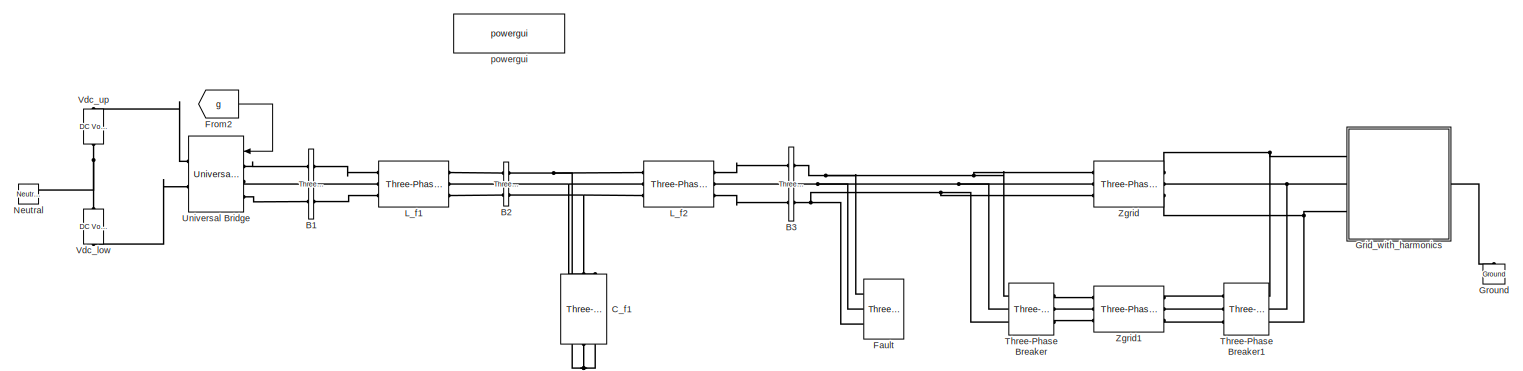
[diagram: root canvas - part 1/2, full width, top band]
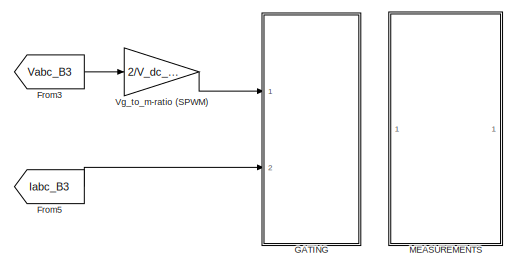
[diagram: root canvas - part 2/2, bottom left region]
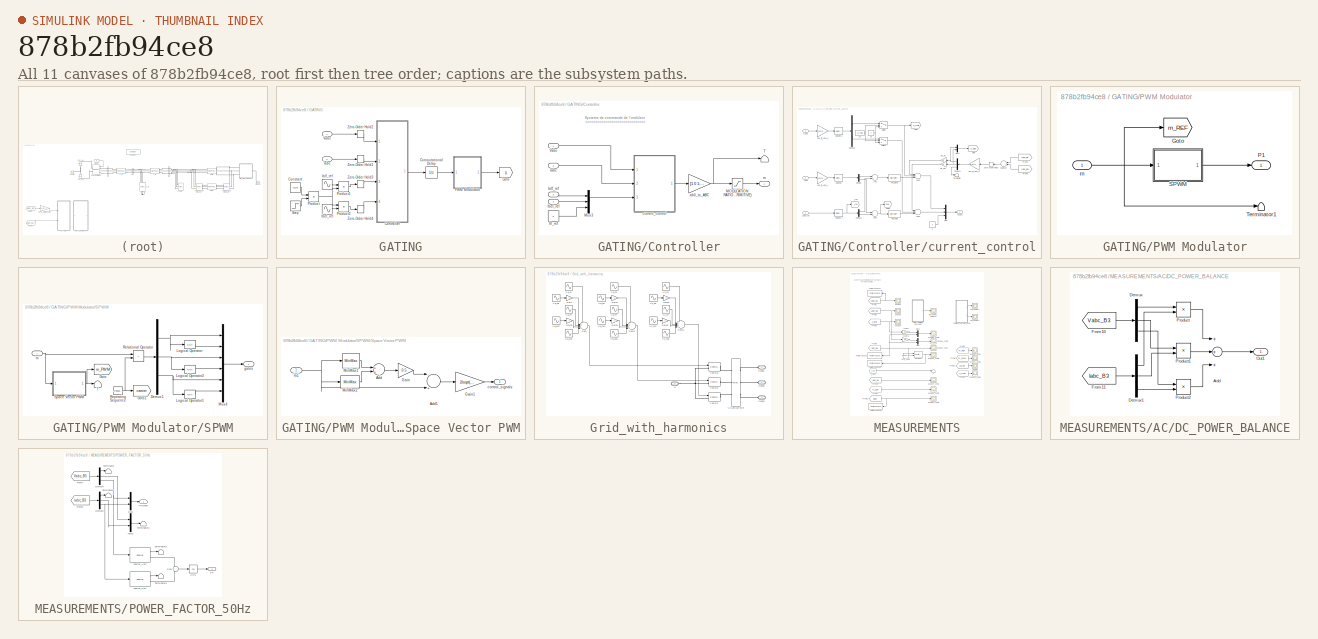
[diagram: thumbnail index - all 11 canvases of the model, root first then tree order]
MODEL slx_878b2fb94ce8
KIND model
CONFIG AbsTol = 0.00001
CONFIG EnableMultiTasking = on
CONFIG FixedStep = auto
CONFIG MaxStep = auto
CONFIG MinStep = auto
CONFIG RelTol = 1e-5
CONFIG SampleTimeConstraint = Unconstrained
CONFIG Solver = ode23tb
CONFIG SolverName = ode23tb
CONFIG StartTime = 0.0
CONFIG StopTime = 0.16
BLOCK [Reference] B1  REF=powerlib/Measurements/Three-Phase
V-I Measurement
  Ports = [0, 0, 0, 0, 0, 3, 3]
  SourceBlock = powerlib/Measurements/Three-Phase\nV-I Measurement
  SourceProductBaseCode = PS
  SourceProductName = Simscape Electrical
  SourceType = Three-Phase VI Measurement
BLOCK [Reference] B2  REF=powerlib/Measurements/Three-Phase
V-I Measurement
  Ports = [0, 0, 0, 0, 0, 3, 3]
  SourceBlock = powerlib/Measurements/Three-Phase\nV-I Measurement
  SourceProductBaseCode = PS
  SourceProductName = Simscape Electrical
  SourceType = Three-Phase VI Measurement
BLOCK [Reference] B3  REF=powerlib/Measurements/Three-Phase
V-I Measurement
  Ports = [0, 0, 0, 0, 0, 3, 3]
  SourceBlock = powerlib/Measurements/Three-Phase\nV-I Measurement
  SourceProductBaseCode = PS
  SourceProductName = Simscape Electrical
  SourceType = Three-Phase VI Measurement
BLOCK [Reference] C_f1  REF=powerlib/Elements/Three-Phase
Series RLC Branch
  AttributesFormatString = \n
  Ports = [0, 0, 0, 0, 0, 3, 3]
  SourceBlock = powerlib/Elements/Three-Phase\nSeries RLC Branch
  SourceProductBaseCode = PS
  SourceProductName = Simscape Electrical
  SourceType = Three-Phase Series RLC Branch
BLOCK [Reference] Fault  REF=powerlib/Elements/Three-Phase Fault
  Ports = [0, 0, 0, 0, 0, 3]
  SourceBlock = powerlib/Elements/Three-Phase Fault
  SourceProductBaseCode = PS
  SourceProductName = Simscape Electrical
  SourceType = Three-Phase Fault
BLOCK [From] From2
  CloseFcn = tagdialog Close
  GotoTag = g
  TagVisibility = global
BLOCK [From] From3
  CloseFcn = tagdialog Close
  GotoTag = Vabc_B3
  TagVisibility = global
BLOCK [From] From5
  CloseFcn = tagdialog Close
  GotoTag = Iabc_B3
  TagVisibility = global
BLOCK [SubSystem] GATING
  Ports = [2]
  RequestExecContextInheritance = off
BLOCK [UnitDelay] GATING/Computational Delay
  HasFrameUpgradeWarning = on
  SampleTime = Ts_control
BLOCK [Constant] GATING/Constant
  Value = Id_ref
BLOCK [SubSystem] GATING/Controller
  Ports = [4, 1]
  RequestExecContextInheritance = off
BLOCK [Constant] GATING/Controller/I0_ref
  SampleTime = Ts_control
  Value = 0
BLOCK [Inport] GATING/Controller/Iabc
  IconDisplay = Port number
  Port = 2
  PortDimensions = 3
BLOCK [Inport] GATING/Controller/Ialf_ref
  IconDisplay = Port number
  Port = 3
  PortDimensions = 1
BLOCK [Inport] GATING/Controller/Ibet_ref
  IconDisplay = Port number
  Port = 4
  PortDimensions = 1
BLOCK [Saturate] GATING/Controller/MODULATION RATIO_LIMITER (PRIMITIVE)
  InputPortMap = u0
  LowerLimit = -1
  Ports = [1, 1]
  UpperLimit = 1
BLOCK [Mux] GATING/Controller/Mux3
  DisplayOption = bar
  Inputs = 3
  Ports = [3, 1]
BLOCK [Terminator] GATING/Controller/T
BLOCK [Inport] GATING/Controller/Vabc
  IconDisplay = Port number
  PortDimensions = 3
BLOCK [Gain] GATING/Controller/ab0_to_ABC
  Gain = [1 0 1; -0.5 sqrt(3)/2 1; -0.5 -sqrt(3)/2 1]
  Multiplication = Matrix(K*u)
  OutDataTypeStr = Inherit: Inherit via internal rule
  ParamDataTypeStr = Inherit: Inherit via internal rule
  SaturateOnIntegerOverflow = off
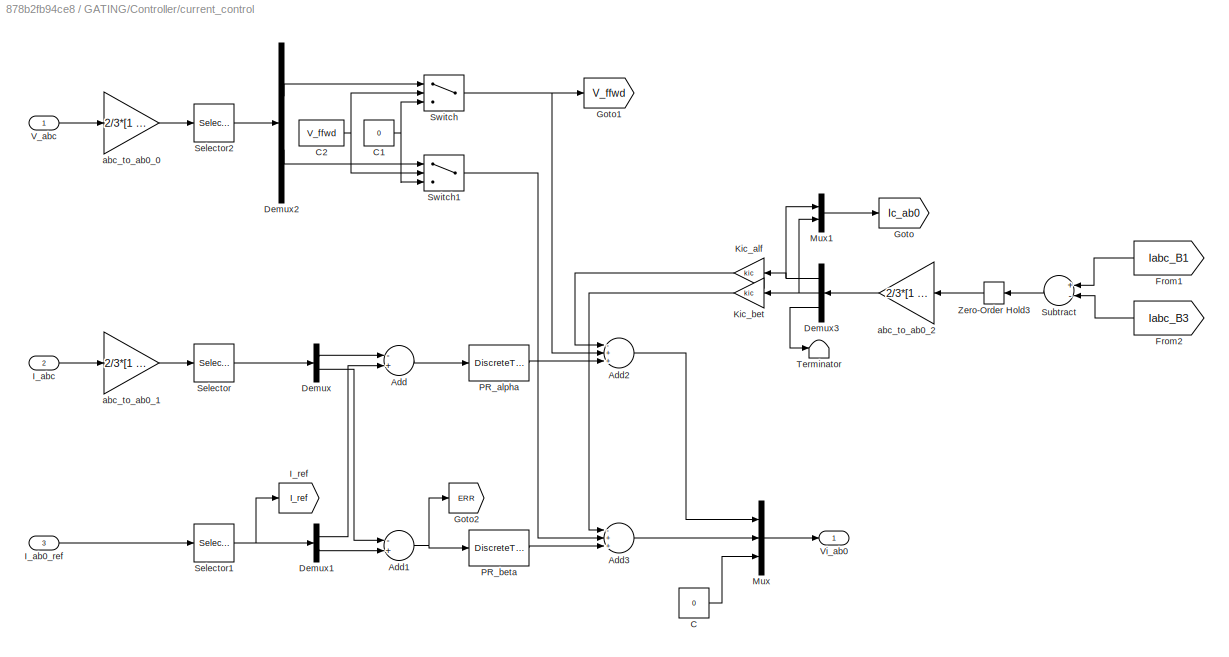
BLOCK [SubSystem] GATING/Controller/current_control
  Ports = [3, 1]
  RequestExecContextInheritance = off
BLOCK [Sum] GATING/Controller/current_control/Add
  InputSameDT = off
  Inputs = -+
  OutDataTypeStr = Inherit: Inherit via internal rule
  Ports = [2, 1]
  SaturateOnIntegerOverflow = off
BLOCK [Sum] GATING/Controller/current_control/Add1
  InputSameDT = off
  Inputs = -+
  OutDataTypeStr = Inherit: Inherit via internal rule
  Ports = [2, 1]
  SaturateOnIntegerOverflow = off
BLOCK [Sum] GATING/Controller/current_control/Add2
  InputSameDT = off
  Inputs = -++
  OutDataTypeStr = Inherit: Inherit via internal rule
  Ports = [3, 1]
  SaturateOnIntegerOverflow = off
BLOCK [Sum] GATING/Controller/current_control/Add3
  InputSameDT = off
  Inputs = -++
  OutDataTypeStr = Inherit: Inherit via internal rule
  Ports = [3, 1]
  SaturateOnIntegerOverflow = off
BLOCK [Constant] GATING/Controller/current_control/C
  SampleTime = Ts_control
  Value = 0
BLOCK [Constant] GATING/Controller/current_control/C1
  SampleTime = Ts_control
  Value = 0
BLOCK [Constant] GATING/Controller/current_control/C2
  SampleTime = Ts_control
  Value = V_ffwd
BLOCK [Demux] GATING/Controller/current_control/Demux
  DisplayOption = bar
  Outputs = 2
  Ports = [1, 2]
BLOCK [Demux] GATING/Controller/current_control/Demux1
  DisplayOption = bar
  Outputs = 2
  Ports = [1, 2]
BLOCK [Demux] GATING/Controller/current_control/Demux2
  DisplayOption = bar
  Outputs = 2
  Ports = [1, 2]
BLOCK [Demux] GATING/Controller/current_control/Demux3
  DisplayOption = bar
  Outputs = 3
  Ports = [1, 3]
BLOCK [From] GATING/Controller/current_control/From1
  CloseFcn = tagdialog Close
  GotoTag = Iabc_B1
  TagVisibility = global
BLOCK [From] GATING/Controller/current_control/From2
  CloseFcn = tagdialog Close
  GotoTag = Iabc_B3
  TagVisibility = global
BLOCK [Goto] GATING/Controller/current_control/Goto
  GotoTag = Ic_ab0
  TagVisibility = global
BLOCK [Goto] GATING/Controller/current_control/Goto1
  GotoTag = V_ffwd
  TagVisibility = global
BLOCK [Goto] GATING/Controller/current_control/Goto2
  GotoTag = ERR
  TagVisibility = global
BLOCK [Inport] GATING/Controller/current_control/I_ab0_ref
  IconDisplay = Port number
  Port = 3
BLOCK [Inport] GATING/Controller/current_control/I_abc
  IconDisplay = Port number
  Port = 2
BLOCK [Goto] GATING/Controller/current_control/I_ref
  GotoTag = I_ref
  TagVisibility = global
BLOCK [Gain] GATING/Controller/current_control/Kic_alf
  Gain = kic
  OutDataTypeStr = Inherit: Inherit via internal rule
  ParamDataTypeStr = Inherit: Inherit via internal rule
  SaturateOnIntegerOverflow = off
BLOCK [Gain] GATING/Controller/current_control/Kic_bet
  Gain = kic
  OutDataTypeStr = Inherit: Inherit via internal rule
  ParamDataTypeStr = Inherit: Inherit via internal rule
  SaturateOnIntegerOverflow = off
BLOCK [Mux] GATING/Controller/current_control/Mux
  DisplayOption = bar
  Inputs = 3
  Ports = [3, 1]
BLOCK [Mux] GATING/Controller/current_control/Mux1
  DisplayOption = bar
  Inputs = 2
  Ports = [2, 1]
BLOCK [DiscreteTransferFcn] GATING/Controller/current_control/PR_alpha
  Denominator = DEN_cc
  InputPortMap = u0
  Numerator = NUM_cc
  Ports = [1, 1]
  SampleTime = Ts_control
BLOCK [DiscreteTransferFcn] GATING/Controller/current_control/PR_beta
  Denominator = DEN_cc
  InputPortMap = u0
  Numerator = NUM_cc
  Ports = [1, 1]
  SampleTime = Ts_control
BLOCK [Selector] GATING/Controller/current_control/Selector
  IndexOptions = Index vector (dialog)
  Indices = [1 2]
  InputPortWidth = 3
  OutputSizes = 1
  Ports = [1, 1]
BLOCK [Selector] GATING/Controller/current_control/Selector1
  IndexOptions = Index vector (dialog)
  Indices = [1 2]
  InputPortWidth = 3
  OutputSizes = 1
  Ports = [1, 1]
BLOCK [Selector] GATING/Controller/current_control/Selector2
  IndexOptions = Index vector (dialog)
  Indices = [1 2]
  InputPortWidth = 3
  OutputSizes = 1
  Ports = [1, 1]
BLOCK [Sum] GATING/Controller/current_control/Subtract
  InputSameDT = off
  Inputs = +-
  OutDataTypeStr = Inherit: Inherit via internal rule
  Ports = [2, 1]
  SaturateOnIntegerOverflow = off
BLOCK [Switch] GATING/Controller/current_control/Switch
  InputSameDT = off
  SaturateOnIntegerOverflow = off
BLOCK [Switch] GATING/Controller/current_control/Switch1
  InputSameDT = off
  SaturateOnIntegerOverflow = off
BLOCK [Terminator] GATING/Controller/current_control/Terminator
BLOCK [Inport] GATING/Controller/current_control/V_abc
  IconDisplay = Port number
BLOCK [Outport] GATING/Controller/current_control/Vi_ab0
  IconDisplay = Port number
BLOCK [ZeroOrderHold] GATING/Controller/current_control/Zero-Order Hold3
  SampleTime = Ts_control
BLOCK [Gain] GATING/Controller/current_control/abc_to_ab0_0
  Gain = 2/3*[1 -0.5 -0.5; 0 sqrt(3)/2 -sqrt(3)/2; 0.5 0.5 0.5]
  Multiplication = Matrix(K*u)
  OutDataTypeStr = Inherit: Inherit via internal rule
  ParamDataTypeStr = Inherit: Inherit via internal rule
  SaturateOnIntegerOverflow = off
BLOCK [Gain] GATING/Controller/current_control/abc_to_ab0_1
  Gain = 2/3*[1 -0.5 -0.5; 0 sqrt(3)/2 -sqrt(3)/2; 0.5 0.5 0.5]
  Multiplication = Matrix(K*u)
  OutDataTypeStr = Inherit: Inherit via internal rule
  ParamDataTypeStr = Inherit: Inherit via internal rule
  SaturateOnIntegerOverflow = off
BLOCK [Gain] GATING/Controller/current_control/abc_to_ab0_2
  Gain = 2/3*[1 -0.5 -0.5; 0 sqrt(3)/2 -sqrt(3)/2; 0.5 0.5 0.5]
  Multiplication = Matrix(K*u)
  OutDataTypeStr = Inherit: Inherit via internal rule
  ParamDataTypeStr = Inherit: Inherit via internal rule
  SaturateOnIntegerOverflow = off
BLOCK [Outport] GATING/Controller/m
  IconDisplay = Port number
BLOCK [Goto] GATING/Goto
  GotoTag = g
  TagVisibility = global
BLOCK [Inport] GATING/Iabc
  IconDisplay = Port number
  Port = 2
  PortDimensions = 3
BLOCK [Sin] GATING/Ialf_ref
  Frequency = 2*pi*f_n
  Ports = [0, 1]
  SampleTime = 0
BLOCK [Sin] GATING/Ibet_ref
  Frequency = 2*pi*f_n
  Phase = -pi/2
  Ports = [0, 1]
  SampleTime = 0
BLOCK [SubSystem] GATING/PWM Modulator
  Ports = [1, 1]
  RequestExecContextInheritance = off
BLOCK [Goto] GATING/PWM Modulator/Goto
  GotoTag = m_REF
  TagVisibility = global
BLOCK [Outport] GATING/PWM Modulator/P1
  IconDisplay = Port number
BLOCK [SubSystem] GATING/PWM Modulator/SPWM
  Ports = [1, 1]
  RequestExecContextInheritance = off
BLOCK [Demux] GATING/PWM Modulator/SPWM/Demux1
  DisplayOption = bar
  Outputs = 3
  Ports = [1, 3]
BLOCK [Goto] GATING/PWM Modulator/SPWM/Goto
  GotoTag = m_PWM
  TagVisibility = global
BLOCK [Goto] GATING/PWM Modulator/SPWM/Goto1
  GotoTag = carrier
  TagVisibility = global
BLOCK [Logic] GATING/PWM Modulator/SPWM/Logical Operator
  AllPortsSameDT = off
  Operator = NOT
  OutDataTypeStr = boolean
  Ports = [1, 1]
BLOCK [Logic] GATING/PWM Modulator/SPWM/Logical Operator1
  AllPortsSameDT = off
  Operator = NOT
  OutDataTypeStr = boolean
  Ports = [1, 1]
BLOCK [Logic] GATING/PWM Modulator/SPWM/Logical Operator2
  AllPortsSameDT = off
  Operator = NOT
  OutDataTypeStr = boolean
  Ports = [1, 1]
BLOCK [Mux] GATING/PWM Modulator/SPWM/Mux4
  DisplayOption = bar
  Inputs = 6
  Ports = [6, 1]
BLOCK [RelationalOperator] GATING/PWM Modulator/SPWM/Relational Operator
  InputSameDT = off
  Operator = >
  Ports = [2, 1]
BLOCK [Reference] GATING/PWM Modulator/SPWM/Repeating Sequence  REF=simulink/Sources/Repeating
Sequence
  Ports = [0, 1]
  SourceBlock = simulink/Sources/Repeating\nSequence
  SourceProductBaseCode = SL
  SourceProductName = Simulink
  SourceType = Repeating table
BLOCK [SubSystem] GATING/PWM Modulator/SPWM/Space Vector PWM
  Ports = [1, 1]
  RequestExecContextInheritance = off
BLOCK [Sum] GATING/PWM Modulator/SPWM/Space Vector PWM/Add
  InputSameDT = off
  OutDataTypeStr = Inherit: Inherit via internal rule
  Ports = [2, 1]
  SaturateOnIntegerOverflow = off
BLOCK [Sum] GATING/PWM Modulator/SPWM/Space Vector PWM/Add1
  InputSameDT = off
  Inputs = -+
  OutDataTypeStr = Inherit: Inherit via internal rule
  Ports = [2, 1]
  SaturateOnIntegerOverflow = off
BLOCK [Gain] GATING/PWM Modulator/SPWM/Space Vector PWM/Gain
  Gain = 0.5
  OutDataTypeStr = Inherit: Inherit via internal rule
  ParamDataTypeStr = Inherit: Inherit via internal rule
  SaturateOnIntegerOverflow = off
BLOCK [Gain] GATING/PWM Modulator/SPWM/Space Vector PWM/Gain1
  Gain = 2/sqrt(3)
  OutDataTypeStr = Inherit: Inherit via internal rule
  ParamDataTypeStr = Inherit: Inherit via internal rule
  SaturateOnIntegerOverflow = off
BLOCK [Inport] GATING/PWM Modulator/SPWM/Space Vector PWM/In1
  IconDisplay = Port number
BLOCK [MinMax] GATING/PWM Modulator/SPWM/Space Vector PWM/MinMax1
  Ports = [1, 1]
BLOCK [MinMax] GATING/PWM Modulator/SPWM/Space Vector PWM/MinMax2
  Function = max
  Ports = [1, 1]
BLOCK [Outport] GATING/PWM Modulator/SPWM/Space Vector PWM/control_signals
  IconDisplay = Port number
BLOCK [Terminator] GATING/PWM Modulator/SPWM/T
BLOCK [Outport] GATING/PWM Modulator/SPWM/gates
  IconDisplay = Port number
BLOCK [Inport] GATING/PWM Modulator/SPWM/m
  IconDisplay = Port number
BLOCK [Terminator] GATING/PWM Modulator/Terminator1
BLOCK [Inport] GATING/PWM Modulator/m
  IconDisplay = Port number
BLOCK [Product] GATING/Product
  InputSameDT = off
  OutDataTypeStr = Inherit: Inherit via internal rule
  Ports = [2, 1]
  RndMeth = Floor
  SaturateOnIntegerOverflow = off
BLOCK [Product] GATING/Product1
  InputSameDT = off
  OutDataTypeStr = Inherit: Inherit via internal rule
  Ports = [2, 1]
  RndMeth = Floor
  SaturateOnIntegerOverflow = off
BLOCK [Product] GATING/Product2
  InputSameDT = off
  OutDataTypeStr = Inherit: Inherit via internal rule
  Ports = [2, 1]
  RndMeth = Floor
  SaturateOnIntegerOverflow = off
BLOCK [Step] GATING/Step
  SampleTime = 0
  Time = 0.04
BLOCK [Inport] GATING/Vabc
  IconDisplay = Port number
  PortDimensions = 3
BLOCK [ZeroOrderHold] GATING/Zero-Order Hold1
  SampleTime = Ts_control
BLOCK [ZeroOrderHold] GATING/Zero-Order Hold2
  SampleTime = Ts_control
BLOCK [ZeroOrderHold] GATING/Zero-Order Hold3
  SampleTime = Ts_control
BLOCK [ZeroOrderHold] GATING/Zero-Order Hold4
  SampleTime = Ts_control
BLOCK [SubSystem] Grid_with_harmonics
  Ports = [0, 0, 0, 0, 0, 3, 1]
  RequestExecContextInheritance = off
BLOCK [PMIOPort] Grid_with_harmonics/Conn1
  Side = Left
BLOCK [PMIOPort] Grid_with_harmonics/Conn2
  Port = 2
  Side = Left
BLOCK [PMIOPort] Grid_with_harmonics/Conn3
  Port = 3
  Side = Left
BLOCK [Gain] Grid_with_harmonics/Gain
  Gain = -1
  OutDataTypeStr = Inherit: Inherit via internal rule
  ParamDataTypeStr = Inherit: Inherit via internal rule
  SaturateOnIntegerOverflow = off
BLOCK [Gain] Grid_with_harmonics/Gain1
  Gain = -1
  OutDataTypeStr = Inherit: Inherit via internal rule
  ParamDataTypeStr = Inherit: Inherit via internal rule
  SaturateOnIntegerOverflow = off
BLOCK [Gain] Grid_with_harmonics/Gain2
  Gain = -1
  OutDataTypeStr = Inherit: Inherit via internal rule
  ParamDataTypeStr = Inherit: Inherit via internal rule
  SaturateOnIntegerOverflow = off
BLOCK [Gain] Grid_with_harmonics/Gain3
  Gain = -1
  OutDataTypeStr = Inherit: Inherit via internal rule
  ParamDataTypeStr = Inherit: Inherit via internal rule
  SaturateOnIntegerOverflow = off
BLOCK [Gain] Grid_with_harmonics/Gain4
  Gain = -1
  OutDataTypeStr = Inherit: Inherit via internal rule
  ParamDataTypeStr = Inherit: Inherit via internal rule
  SaturateOnIntegerOverflow = off
BLOCK [Gain] Grid_with_harmonics/Gain5
  Gain = -1
  OutDataTypeStr = Inherit: Inherit via internal rule
  ParamDataTypeStr = Inherit: Inherit via internal rule
  SaturateOnIntegerOverflow = off
BLOCK [PMIOPort] Grid_with_harmonics/N
  Port = 4
  Side = Right
BLOCK [Sum] Grid_with_harmonics/Sum
  IconShape = round
  InputSameDT = off
  Inputs = +++++|
  OutDataTypeStr = Inherit: Inherit via internal rule
  Ports = [5, 1]
  SaturateOnIntegerOverflow = off
BLOCK [Sum] Grid_with_harmonics/Sum2
  IconShape = round
  InputSameDT = off
  Inputs = +++++|
  OutDataTypeStr = Inherit: Inherit via internal rule
  Ports = [5, 1]
  SaturateOnIntegerOverflow = off
BLOCK [Sum] Grid_with_harmonics/Sum3
  IconShape = round
  InputSameDT = off
  Inputs = +++++|
  OutDataTypeStr = Inherit: Inherit via internal rule
  Ports = [5, 1]
  SaturateOnIntegerOverflow = off
BLOCK [Reference] Grid_with_harmonics/VOLTEMETER  REF=powerlib/Measurements/Three-Phase
V-I Measurement
  Ports = [0, 0, 0, 0, 0, 3, 3]
  SourceBlock = powerlib/Measurements/Three-Phase\nV-I Measurement
  SourceProductBaseCode = PS
  SourceProductName = Simscape Electrical
  SourceType = Three-Phase VI Measurement
BLOCK [Sin] Grid_with_harmonics/Va_h1
  Amplitude = Vgrid
  Frequency = 2*pi*f_n
  Ports = [0, 1]
  SampleTime = 0
BLOCK [Sin] Grid_with_harmonics/Va_h12
  Amplitude = Vg_h12
  Frequency = 12*2*pi*f_n
  Ports = [0, 1]
  SampleTime = 0
BLOCK [Sin] Grid_with_harmonics/Va_h15
  Amplitude = Vg_h15
  Frequency = 15*2*pi*f_n
  Ports = [0, 1]
  SampleTime = 0
BLOCK [Sin] Grid_with_harmonics/Va_h5
  Amplitude = Vg_h5
  Frequency = 5*2*pi*f_n
  Ports = [0, 1]
  SampleTime = 0
BLOCK [Sin] Grid_with_harmonics/Va_h7
  Amplitude = Vg_h7
  Frequency = 7*2*pi*f_n
  Ports = [0, 1]
  SampleTime = 0
BLOCK [Sin] Grid_with_harmonics/Vb_h1
  Amplitude = Vgrid
  Frequency = 2*pi*f_n
  Phase = -2*pi/3
  Ports = [0, 1]
  SampleTime = 0
BLOCK [Sin] Grid_with_harmonics/Vb_h12
  Amplitude = Vg_h12
  Frequency = 12*2*pi*f_n
  Phase = 2*pi/3
  Ports = [0, 1]
  SampleTime = 0
BLOCK [Sin] Grid_with_harmonics/Vb_h15
  Amplitude = Vg_h15
  Frequency = 15*2*pi*f_n
  Phase = -2*pi/3
  Ports = [0, 1]
  SampleTime = 0
BLOCK [Sin] Grid_with_harmonics/Vb_h5
  Amplitude = Vg_h5
  Frequency = 5*2*pi*f_n
  Phase = 2*pi/3
  Ports = [0, 1]
  SampleTime = 0
BLOCK [Sin] Grid_with_harmonics/Vb_h7
  Amplitude = Vg_h7
  Frequency = 7*2*pi*f_n
  Phase = -2*pi/3
  Ports = [0, 1]
  SampleTime = 0
BLOCK [Sin] Grid_with_harmonics/Vc_h1
  Amplitude = Vgrid
  Frequency = 2*pi*f_n
  Phase = 2*pi/3
  Ports = [0, 1]
  SampleTime = 0
BLOCK [Sin] Grid_with_harmonics/Vc_h12
  Amplitude = Vg_h12
  Frequency = 12*2*pi*f_n
  Phase = -2*pi/3
  Ports = [0, 1]
  SampleTime = 0
BLOCK [Sin] Grid_with_harmonics/Vc_h15
  Amplitude = Vg_h15
  Frequency = 15*2*pi*f_n
  Phase = 2*pi/3
  Ports = [0, 1]
  SampleTime = 0
BLOCK [Sin] Grid_with_harmonics/Vc_h5
  Amplitude = Vg_h5
  Frequency = 5*2*pi*f_n
  Phase = -2*pi/3
  Ports = [0, 1]
  SampleTime = 0
BLOCK [Sin] Grid_with_harmonics/Vc_h7
  Amplitude = Vg_h7
  Frequency = 7*2*pi*f_n
  Phase = 2*pi/3
  Ports = [0, 1]
  SampleTime = 0
BLOCK [Reference] Grid_with_harmonics/Vgrid,a  REF=powerlib/Electrical
Sources/Controlled Voltage Source
  Ports = [1, 0, 0, 0, 0, 1, 1]
  SourceBlock = powerlib/Electrical\nSources/Controlled Voltage Source
  SourceProductBaseCode = PS
  SourceProductName = Simscape Electrical
  SourceType = Controlled Voltage Source
BLOCK [Reference] Grid_with_harmonics/Vgrid,b  REF=powerlib/Electrical
Sources/Controlled Voltage Source
  Ports = [1, 0, 0, 0, 0, 1, 1]
  SourceBlock = powerlib/Electrical\nSources/Controlled Voltage Source
  SourceProductBaseCode = PS
  SourceProductName = Simscape Electrical
  SourceType = Controlled Voltage Source
BLOCK [Reference] Grid_with_harmonics/Vgrid,c  REF=powerlib/Electrical
Sources/Controlled Voltage Source
  Ports = [1, 0, 0, 0, 0, 1, 1]
  SourceBlock = powerlib/Electrical\nSources/Controlled Voltage Source
  SourceProductBaseCode = PS
  SourceProductName = Simscape Electrical
  SourceType = Controlled Voltage Source
BLOCK [Reference] Ground  REF=powerlib/Elements/Ground
  Ports = [0, 0, 0, 0, 0, 1]
  SourceBlock = powerlib/Elements/Ground
  SourceProductBaseCode = PS
  SourceProductName = Simscape Electrical
  SourceType = Ground
BLOCK [Reference] L_f1  REF=powerlib/Elements/Three-Phase
Series RLC Branch
  AttributesFormatString = \n
  Ports = [0, 0, 0, 0, 0, 3, 3]
  SourceBlock = powerlib/Elements/Three-Phase\nSeries RLC Branch
  SourceProductBaseCode = PS
  SourceProductName = Simscape Electrical
  SourceType = Three-Phase Series RLC Branch
BLOCK [Reference] L_f2  REF=powerlib/Elements/Three-Phase
Series RLC Branch
  AttributesFormatString = \n
  Ports = [0, 0, 0, 0, 0, 3, 3]
  SourceBlock = powerlib/Elements/Three-Phase\nSeries RLC Branch
  SourceProductBaseCode = PS
  SourceProductName = Simscape Electrical
  SourceType = Three-Phase Series RLC Branch
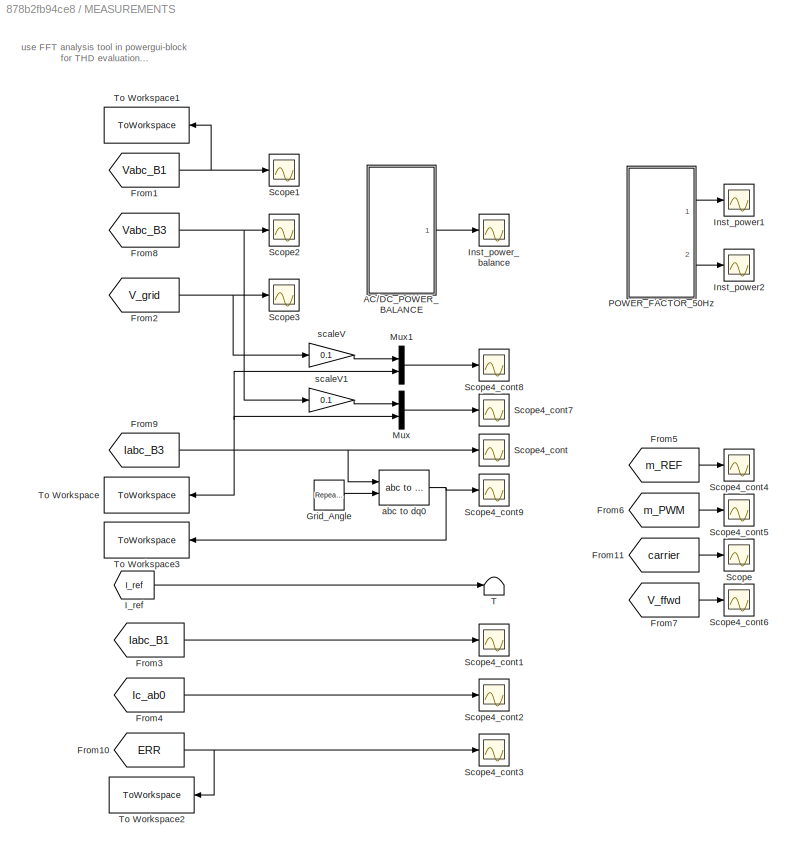
BLOCK [SubSystem] MEASUREMENTS
  Ports = []
  RequestExecContextInheritance = off
BLOCK [SubSystem] MEASUREMENTS/AC//DC_POWER_BALANCE
  Commented = on
  Ports = [0, 1]
  RequestExecContextInheritance = off
BLOCK [Sum] MEASUREMENTS/AC//DC_POWER_BALANCE/Add
  InputSameDT = off
  Inputs = +++
  OutDataTypeStr = Inherit: Inherit via internal rule
  Ports = [3, 1]
  SaturateOnIntegerOverflow = off
BLOCK [Demux] MEASUREMENTS/AC//DC_POWER_BALANCE/Demux
  DisplayOption = bar
  Outputs = 3
  Ports = [1, 3]
BLOCK [Demux] MEASUREMENTS/AC//DC_POWER_BALANCE/Demux1
  DisplayOption = bar
  Outputs = 3
  Ports = [1, 3]
BLOCK [From] MEASUREMENTS/AC//DC_POWER_BALANCE/From10
  CloseFcn = tagdialog Close
  GotoTag = Vabc_B3
  TagVisibility = global
BLOCK [From] MEASUREMENTS/AC//DC_POWER_BALANCE/From11
  CloseFcn = tagdialog Close
  GotoTag = Iabc_B3
  TagVisibility = global
BLOCK [Outport] MEASUREMENTS/AC//DC_POWER_BALANCE/Out1
  IconDisplay = Port number
BLOCK [Product] MEASUREMENTS/AC//DC_POWER_BALANCE/Product
  InputSameDT = off
  OutDataTypeStr = Inherit: Inherit via internal rule
  Ports = [2, 1]
  RndMeth = Floor
  SaturateOnIntegerOverflow = off
BLOCK [Product] MEASUREMENTS/AC//DC_POWER_BALANCE/Product1
  InputSameDT = off
  OutDataTypeStr = Inherit: Inherit via internal rule
  Ports = [2, 1]
  RndMeth = Floor
  SaturateOnIntegerOverflow = off
BLOCK [Product] MEASUREMENTS/AC//DC_POWER_BALANCE/Product2
  InputSameDT = off
  OutDataTypeStr = Inherit: Inherit via internal rule
  Ports = [2, 1]
  RndMeth = Floor
  SaturateOnIntegerOverflow = off
BLOCK [From] MEASUREMENTS/From1
  CloseFcn = tagdialog Close
  Commented = on
  GotoTag = Vabc_B1
  TagVisibility = global
BLOCK [From] MEASUREMENTS/From10
  CloseFcn = tagdialog Close
  Commented = on
  GotoTag = ERR
  TagVisibility = global
BLOCK [From] MEASUREMENTS/From11
  CloseFcn = tagdialog Close
  Commented = on
  GotoTag = carrier
  TagVisibility = global
BLOCK [From] MEASUREMENTS/From2
  CloseFcn = tagdialog Close
  GotoTag = V_grid
  TagVisibility = global
BLOCK [From] MEASUREMENTS/From3
  CloseFcn = tagdialog Close
  Commented = on
  GotoTag = Iabc_B1
  TagVisibility = global
BLOCK [From] MEASUREMENTS/From4
  CloseFcn = tagdialog Close
  Commented = on
  GotoTag = Ic_ab0
  TagVisibility = global
BLOCK [From] MEASUREMENTS/From5
  CloseFcn = tagdialog Close
  GotoTag = m_REF
  TagVisibility = global
BLOCK [From] MEASUREMENTS/From6
  CloseFcn = tagdialog Close
  GotoTag = m_PWM
  TagVisibility = global
BLOCK [From] MEASUREMENTS/From7
  CloseFcn = tagdialog Close
  GotoTag = V_ffwd
  TagVisibility = global
BLOCK [From] MEASUREMENTS/From8
  CloseFcn = tagdialog Close
  GotoTag = Vabc_B3
  TagVisibility = global
BLOCK [From] MEASUREMENTS/From9
  CloseFcn = tagdialog Close
  GotoTag = Iabc_B3
  TagVisibility = global
BLOCK [Reference] MEASUREMENTS/Grid_Angle  REF=simulink/Sources/Repeating
Sequence
  Ports = [0, 1]
  SourceBlock = simulink/Sources/Repeating\nSequence
  SourceProductBaseCode = SL
  SourceProductName = Simulink
  SourceType = Repeating table
BLOCK [From] MEASUREMENTS/I_ref
  Commented = on
  GotoTag = I_ref
  TagVisibility = global
BLOCK [Scope] MEASUREMENTS/Inst_power1
  Commented = on
  Floating = off
  NumInputPorts = 1
  Ports = [1]
  ScopeSpecificationString = C++SS(StrPVP('Location','[5, 48, 1367, 727]'),StrPVP('Open','off'),StrPVP('ZoomMode','xonly'),MxPVP('AxesTitles',53,'struct(''axes1'',''%<SignalLabel>'')'),MxPVP('ScopeGraphics',56,'struct(''FigureColor'',''[0.501960784313725 0.501960784313725 0.501960784313725]'',''AxesColor'',''[0 0 0]'',''AxesTickColor'',''[1 1 1]'',''LineColors'',''[1 1 0;1 0 1;0 1 1;1 0 0;0 1 0;0 0 1]'',''LineStyles'',''-|-|-...<+419ch>
BLOCK [Scope] MEASUREMENTS/Inst_power2
  Commented = on
  Floating = off
  NumInputPorts = 1
  Ports = [1]
  ScopeSpecificationString = C++SS(StrPVP('Location','[5, 48, 1367, 727]'),StrPVP('Open','off'),StrPVP('ZoomMode','yonly'),MxPVP('AxesTitles',53,'struct(''axes1'',''%<SignalLabel>'')'),MxPVP('ScopeGraphics',56,'struct(''FigureColor'',''[0.501960784313725 0.501960784313725 0.501960784313725]'',''AxesColor'',''[0 0 0]'',''AxesTickColor'',''[1 1 1]'',''LineColors'',''[1 1 0;1 0 1;0 1 1;1 0 0;0 1 0;0 0 1]'',''LineStyles'',''-|-|-...<+449ch>
BLOCK [Scope] MEASUREMENTS/Inst_power_balance
  Commented = on
  Floating = off
  NumInputPorts = 1
  Ports = [1]
  ScopeSpecificationString = C++SS(StrPVP('Location','[5, 48, 1367, 727]'),StrPVP('Open','off'),StrPVP('ZoomMode','yonly'),MxPVP('AxesTitles',53,'struct(''axes1'',''%<SignalLabel>'')'),MxPVP('ScopeGraphics',56,'struct(''FigureColor'',''[0.501960784313725 0.501960784313725 0.501960784313725]'',''AxesColor'',''[0 0 0]'',''AxesTickColor'',''[1 1 1]'',''LineColors'',''[1 1 0;1 0 1;0 1 1;1 0 0;0 1 0;0 0 1]'',''LineStyles'',''-|-|-...<+457ch>
BLOCK [Mux] MEASUREMENTS/Mux
  DisplayOption = bar
  Inputs = 2
  Ports = [2, 1]
BLOCK [Mux] MEASUREMENTS/Mux1
  DisplayOption = bar
  Inputs = 2
  Ports = [2, 1]
BLOCK [SubSystem] MEASUREMENTS/POWER_FACTOR_50Hz
  Commented = on
  Ports = [0, 2]
  RequestExecContextInheritance = off
BLOCK [Trigonometry] MEASUREMENTS/POWER_FACTOR_50Hz/COS
  Operator = cos
  Ports = [1, 1]
BLOCK [Demux] MEASUREMENTS/POWER_FACTOR_50Hz/Demux2
  DisplayOption = bar
  Outputs = 3
  Ports = [1, 3]
BLOCK [Demux] MEASUREMENTS/POWER_FACTOR_50Hz/Demux4
  DisplayOption = bar
  Outputs = 3
  Ports = [1, 3]
BLOCK [Reference] MEASUREMENTS/POWER_FACTOR_50Hz/Fourier_Curr  REF=powerlib_extras/Measurements/Fourier
  Ports = [1, 2]
  SourceBlock = powerlib_extras/Measurements/Fourier
  SourceProductBaseCode = PS
  SourceProductName = Simscape Electrical
  SourceType = Fourier analyser
BLOCK [Reference] MEASUREMENTS/POWER_FACTOR_50Hz/Fourier_Volt  REF=powerlib_extras/Measurements/Fourier
  Ports = [1, 2]
  SourceBlock = powerlib_extras/Measurements/Fourier
  SourceProductBaseCode = PS
  SourceProductName = Simscape Electrical
  SourceType = Fourier analyser
BLOCK [From] MEASUREMENTS/POWER_FACTOR_50Hz/From6
  CloseFcn = tagdialog Close
  GotoTag = Iabc_B3
  TagVisibility = global
BLOCK [From] MEASUREMENTS/POWER_FACTOR_50Hz/From7
  CloseFcn = tagdialog Close
  GotoTag = Vabc_B3
  TagVisibility = global
BLOCK [Mux] MEASUREMENTS/POWER_FACTOR_50Hz/Mux1
  DisplayOption = bar
  Inputs = 2
  Ports = [2, 1]
BLOCK [Mux] MEASUREMENTS/POWER_FACTOR_50Hz/Mux2
  DisplayOption = bar
  Inputs = 2
  Ports = [2, 1]
BLOCK [Outport] MEASUREMENTS/POWER_FACTOR_50Hz/PF
  IconDisplay = Port number
  Port = 2
BLOCK [Outport] MEASUREMENTS/POWER_FACTOR_50Hz/PF_Wave
  IconDisplay = Port number
BLOCK [Sum] MEASUREMENTS/POWER_FACTOR_50Hz/Sum
  IconShape = round
  InputSameDT = off
  Inputs = +|-
  OutDataTypeStr = Inherit: Inherit via internal rule
  Ports = [2, 1]
  SaturateOnIntegerOverflow = off
BLOCK [Terminator] MEASUREMENTS/POWER_FACTOR_50Hz/Terminator
BLOCK [Terminator] MEASUREMENTS/POWER_FACTOR_50Hz/Terminator1
BLOCK [Terminator] MEASUREMENTS/POWER_FACTOR_50Hz/Terminator2
BLOCK [Terminator] MEASUREMENTS/POWER_FACTOR_50Hz/Terminator3
BLOCK [Terminator] MEASUREMENTS/POWER_FACTOR_50Hz/Terminator4
BLOCK [Scope] MEASUREMENTS/Scope
  Commented = on
  Floating = off
  NumInputPorts = 1
  Ports = [1]
  ScopeSpecificationString = C++SS(StrPVP('Location','[188, 390, 512, 629]'),StrPVP('Open','off'),StrPVP('ZoomMode','xonly'),MxPVP('AxesTitles',53,'struct(''axes1'',''%<SignalLabel>'')'),MxPVP('ScopeGraphics',56,'struct(''FigureColor'',''[0.5 0.5 0.5]'',''AxesColor'',''[0 0 0]'',''AxesTickColor'',''[1 1 1]'',''LineColors'',''[1 1 0;1 0 1;0 1 1;1 0 0;0 1 0;0 0 1]'',''LineStyles'',''-|-|-|-|-|-'',''LineWidths'',''[0.5 0.5 0.5 0...<+326ch>
BLOCK [Scope] MEASUREMENTS/Scope1
  Commented = on
  Floating = off
  NumInputPorts = 1
  Ports = [1]
  ScopeSpecificationString = C++SS(StrPVP('Location','[262, 92, 1015, 649]'),StrPVP('Open','off'),StrPVP('ZoomMode','xonly'),MxPVP('AxesTitles',53,'struct(''axes1'',''%<SignalLabel>'')'),MxPVP('ScopeGraphics',56,'struct(''FigureColor'',''[1 1 1]'',''AxesColor'',''[1 1 1]'',''AxesTickColor'',''[0 0 0]'',''LineColors'',''[0 0.498039215686275 0;0 0 1;1 0 0;1 0 0;0 1 0;0 0 1]'',''LineStyles'',''-|-|-|-|-|-'',''LineWidths'',''[2 2...<+415ch>
BLOCK [Scope] MEASUREMENTS/Scope2
  Floating = off
  NumInputPorts = 1
  Ports = [1]
  ScopeSpecificationString = Simulink.scopes.TimeScopeBlockCfg('CurrentConfiguration', extmgr.ConfigurationSet(extmgr.Configuration('Core','General UI',true,'FigureColor',[1 1 1]),extmgr.Configuration('Core','Source UI',true),extmgr.Configuration('Sources','WiredSimulink',true,'DataLoggingVariableName','ScopeData3','DataLoggingSaveFormat','StructureWithTime','DataLoggingDecimation','1','DataLoggingDecimateData',true),extmgr.C...<+2912ch>
BLOCK [Scope] MEASUREMENTS/Scope3
  Floating = off
  NumInputPorts = 1
  Ports = [1]
  ScopeSpecificationString = C++SS(StrPVP('Location','[262, 92, 1015, 649]'),StrPVP('Open','off'),StrPVP('ZoomMode','yonly'),MxPVP('AxesTitles',53,'struct(''axes1'',''%<SignalLabel>'')'),MxPVP('ScopeGraphics',56,'struct(''FigureColor'',''[1 1 1]'',''AxesColor'',''[1 1 1]'',''AxesTickColor'',''[0 0 0]'',''LineColors'',''[0 0.498039215686275 0;0 0 1;1 0 0;1 0 0;0 1 0;0 0 1]'',''LineStyles'',''-|-|-|-|-|-'',''LineWidths'',''[2 2...<+415ch>
BLOCK [Scope] MEASUREMENTS/Scope4_cont
  Floating = off
  NumInputPorts = 1
  Ports = [1]
  ScopeSpecificationString = Simulink.scopes.TimeScopeBlockCfg('CurrentConfiguration', extmgr.ConfigurationSet(extmgr.Configuration('Core','General UI',true,'FigureColor',[1 1 1]),extmgr.Configuration('Core','Source UI',true),extmgr.Configuration('Sources','WiredSimulink',true,'DataLoggingVariableName','ScopeData1','DataLoggingSaveFormat','StructureWithTime','DataLoggingDecimation','1','DataLoggingDecimateData',true),extmgr.C...<+2943ch>
BLOCK [Scope] MEASUREMENTS/Scope4_cont1
  Commented = on
  Floating = off
  NumInputPorts = 1
  Ports = [1]
  ScopeSpecificationString = C++SS(StrPVP('Location','[5, 48, 1371, 727]'),StrPVP('Open','off'),StrPVP('ZoomMode','xonly'),MxPVP('AxesTitles',53,'struct(''axes1'',''%<SignalLabel>'')'),MxPVP('ScopeGraphics',56,'struct(''FigureColor'',''[1 1 1]'',''AxesColor'',''[1 1 1]'',''AxesTickColor'',''[0 0 0]'',''LineColors'',''[0 0 0;1 0 0;0 0 1;0 1 0;0.47843137254902 0.0627450980392157 0.894117647058824;0 0 1]'',''LineStyles'',''-|-|n...<+436ch>
BLOCK [Scope] MEASUREMENTS/Scope4_cont2
  Commented = on
  Floating = off
  NumInputPorts = 1
  Ports = [1]
  ScopeSpecificationString = C++SS(StrPVP('Location','[5, 48, 1371, 727]'),StrPVP('Open','off'),StrPVP('ZoomMode','yonly'),MxPVP('AxesTitles',53,'struct(''axes1'',''%<SignalLabel>'')'),MxPVP('ScopeGraphics',56,'struct(''FigureColor'',''[1 1 1]'',''AxesColor'',''[1 1 1]'',''AxesTickColor'',''[0 0 0]'',''LineColors'',''[0 0 0;1 0 0;0 0 1;0 1 0;0.47843137254902 0.0627450980392157 0.894117647058824;0 0 1]'',''LineStyles'',''-|-|n...<+436ch>
BLOCK [Scope] MEASUREMENTS/Scope4_cont3
  Commented = on
  Floating = off
  NumInputPorts = 1
  Ports = [1]
  ScopeSpecificationString = C++SS(StrPVP('Location','[5, 48, 1371, 727]'),StrPVP('Open','off'),StrPVP('ZoomMode','xonly'),MxPVP('AxesTitles',53,'struct(''axes1'',''%<SignalLabel>'')'),MxPVP('ScopeGraphics',56,'struct(''FigureColor'',''[1 1 1]'',''AxesColor'',''[1 1 1]'',''AxesTickColor'',''[0 0 0]'',''LineColors'',''[0 0 0;1 0 0;0 0 1;0 1 0;0.47843137254902 0.0627450980392157 0.894117647058824;0 0 1]'',''LineStyles'',''-|-|n...<+436ch>
BLOCK [Scope] MEASUREMENTS/Scope4_cont4
  Floating = off
  NumInputPorts = 1
  Ports = [1]
  ScopeSpecificationString = C++SS(StrPVP('Location','[5, 48, 1371, 727]'),StrPVP('Open','off'),StrPVP('ZoomMode','yonly'),MxPVP('AxesTitles',53,'struct(''axes1'',''%<SignalLabel>'')'),MxPVP('ScopeGraphics',56,'struct(''FigureColor'',''[1 1 1]'',''AxesColor'',''[1 1 1]'',''AxesTickColor'',''[0 0 0]'',''LineColors'',''[0 0 0;1 0 0;0 0 1;0 1 0;0.47843137254902 0.0627450980392157 0.894117647058824;0 0 1]'',''LineStyles'',''-|-|-...<+433ch>
BLOCK [Scope] MEASUREMENTS/Scope4_cont5
  Floating = off
  NumInputPorts = 1
  Ports = [1]
  ScopeSpecificationString = C++SS(StrPVP('Location','[5, 48, 1371, 727]'),StrPVP('Open','off'),StrPVP('ZoomMode','yonly'),MxPVP('AxesTitles',53,'struct(''axes1'',''%<SignalLabel>'')'),MxPVP('ScopeGraphics',56,'struct(''FigureColor'',''[1 1 1]'',''AxesColor'',''[1 1 1]'',''AxesTickColor'',''[0 0 0]'',''LineColors'',''[0 0 0;1 0 0;0 0 1;0 1 0;0.47843137254902 0.0627450980392157 0.894117647058824;0 0 1]'',''LineStyles'',''-|-|-...<+434ch>
BLOCK [Scope] MEASUREMENTS/Scope4_cont6
  Floating = off
  NumInputPorts = 1
  Ports = [1]
  ScopeSpecificationString = C++SS(StrPVP('Location','[5, 48, 1371, 727]'),StrPVP('Open','off'),StrPVP('ZoomMode','yonly'),MxPVP('AxesTitles',53,'struct(''axes1'',''%<SignalLabel>'')'),MxPVP('ScopeGraphics',56,'struct(''FigureColor'',''[1 1 1]'',''AxesColor'',''[1 1 1]'',''AxesTickColor'',''[0 0 0]'',''LineColors'',''[0 0 0;1 0 0;0 0 1;1 1 0;1 0 1;0 1 1]'',''LineStyles'',''-|-|-|-|-|-'',''LineWidths'',''[2 2 2 2 2 2]'',''Mark...<+379ch>
BLOCK [Scope] MEASUREMENTS/Scope4_cont7
  Floating = off
  NumInputPorts = 1
  Ports = [1]
  ScopeSpecificationString = C++SS(StrPVP('Location','[5, 48, 1371, 727]'),StrPVP('Open','off'),StrPVP('ZoomMode','yonly'),MxPVP('AxesTitles',53,'struct(''axes1'',''%<SignalLabel>'')'),MxPVP('ScopeGraphics',56,'struct(''FigureColor'',''[1 1 1]'',''AxesColor'',''[1 1 1]'',''AxesTickColor'',''[0 0 0]'',''LineColors'',''[0 0 0;1 0 0;0 0 1;1 1 0;1 0 1;0 1 1]'',''LineStyles'',''-|-|-|-|-|-'',''LineWidths'',''[2 2 2 2 2 2]'',''Mark...<+379ch>
BLOCK [Scope] MEASUREMENTS/Scope4_cont8
  Floating = off
  NumInputPorts = 1
  Ports = [1]
  ScopeSpecificationString = Simulink.scopes.TimeScopeBlockCfg('CurrentConfiguration', extmgr.ConfigurationSet(extmgr.Configuration('Core','General UI',true,'FigureColor',[1 1 1]),extmgr.Configuration('Core','Source UI',true),extmgr.Configuration('Sources','WiredSimulink',true,'DataLoggingVariableName','ScopeData15','DataLoggingSaveFormat','StructureWithTime','DataLoggingDecimation','1','DataLoggingDecimateData',true),extmgr....<+2838ch>
BLOCK [Scope] MEASUREMENTS/Scope4_cont9
  Floating = off
  NumInputPorts = 1
  Ports = [1]
  ScopeSpecificationString = Simulink.scopes.TimeScopeBlockCfg('CurrentConfiguration', extmgr.ConfigurationSet(extmgr.Configuration('Core','General UI',true,'FigureColor',[1 1 1]),extmgr.Configuration('Core','Source UI',true),extmgr.Configuration('Sources','WiredSimulink',true,'DataLoggingVariableName','ScopeData16','DataLoggingSaveFormat','StructureWithTime','DataLoggingDecimation','1','DataLoggingDecimateData',true),extmgr....<+2946ch>
BLOCK [Terminator] MEASUREMENTS/T
  Commented = on
BLOCK [ToWorkspace] MEASUREMENTS/To Workspace
  MaxDataPoints = inf
  Ports = [1]
  SampleTime = -1
  SaveFormat = Structure With Time
  VariableName = Grid_Curr_THD
BLOCK [ToWorkspace] MEASUREMENTS/To Workspace1
  Commented = on
  MaxDataPoints = inf
  Ports = [1]
  SampleTime = -1
  SaveFormat = Structure With Time
  VariableName = Inv_Volt_THD
BLOCK [ToWorkspace] MEASUREMENTS/To Workspace2
  Commented = on
  MaxDataPoints = inf
  Ports = [1]
  SampleTime = -1
  SaveFormat = Structure With Time
  VariableName = ERR_THD
BLOCK [ToWorkspace] MEASUREMENTS/To Workspace3
  MaxDataPoints = inf
  Ports = [1]
  SampleTime = -1
  SaveFormat = Structure With Time
  VariableName = Grid_Curr_DQ0
BLOCK [Reference] MEASUREMENTS/abc to dq0  REF=powerlib_meascontrol/Transformations/abc to dq0
  Ports = [2, 1]
  SourceBlock = powerlib_meascontrol/Transformations/abc to dq0
  SourceProductBaseCode = PS
  SourceProductName = Simscape Electrical
  SourceType = abc to dq0 Transformation
BLOCK [Gain] MEASUREMENTS/scaleV
  Gain = 0.1
  OutDataTypeStr = Inherit: Inherit via internal rule
  ParamDataTypeStr = Inherit: Inherit via internal rule
  SaturateOnIntegerOverflow = off
BLOCK [Gain] MEASUREMENTS/scaleV1
  Gain = 0.1
  OutDataTypeStr = Inherit: Inherit via internal rule
  ParamDataTypeStr = Inherit: Inherit via internal rule
  SaturateOnIntegerOverflow = off
BLOCK [Reference] Neutral  REF=powerlib/Elements/Neutral
  AttributesFormatString = node %<NodeNumber>
  Ports = [0, 0, 0, 0, 0, 1]
  SourceBlock = powerlib/Elements/Neutral
  SourceProductBaseCode = PS
  SourceProductName = Simscape Electrical
  SourceType = Neutral
BLOCK [Reference] Three-Phase Breaker  REF=powerlib/Elements/Three-Phase Breaker
  Ports = [0, 0, 0, 0, 0, 3, 3]
  SourceBlock = powerlib/Elements/Three-Phase Breaker
  SourceProductBaseCode = PS
  SourceProductName = Simscape Electrical
  SourceType = Three-Phase Breaker
BLOCK [Reference] Three-Phase Breaker1  REF=powerlib/Elements/Three-Phase Breaker
  Ports = [0, 0, 0, 0, 0, 3, 3]
  SourceBlock = powerlib/Elements/Three-Phase Breaker
  SourceProductBaseCode = PS
  SourceProductName = Simscape Electrical
  SourceType = Three-Phase Breaker
BLOCK [Reference] Universal Bridge  REF=powerlib/Power
Electronics/Universal Bridge
  Ports = [1, 0, 0, 0, 0, 3, 2]
  SourceBlock = powerlib/Power\nElectronics/Universal Bridge
  SourceProductBaseCode = PS
  SourceProductName = Simscape Electrical
  SourceType = Universal Bridge
BLOCK [Reference] Vdc_low  REF=powerlib/Electrical
Sources/DC Voltage Source
  Ports = [0, 0, 0, 0, 0, 1, 1]
  SourceBlock = powerlib/Electrical\nSources/DC Voltage Source
  SourceProductBaseCode = PS
  SourceProductName = Simscape Electrical
  SourceType = DC Voltage Source
BLOCK [Reference] Vdc_up  REF=powerlib/Electrical
Sources/DC Voltage Source
  Ports = [0, 0, 0, 0, 0, 1, 1]
  SourceBlock = powerlib/Electrical\nSources/DC Voltage Source
  SourceProductBaseCode = PS
  SourceProductName = Simscape Electrical
  SourceType = DC Voltage Source
BLOCK [Gain] Vg_to_m-ratio (SPWM)
  Gain = 2/V_dc_ref
  OutDataTypeStr = Inherit: Inherit via internal rule
  ParamDataTypeStr = Inherit: Inherit via internal rule
  SaturateOnIntegerOverflow = off
BLOCK [Reference] Zgrid  REF=powerlib/Elements/Three-Phase
Series RLC Branch
  AttributesFormatString = \n
  Ports = [0, 0, 0, 0, 0, 3, 3]
  SourceBlock = powerlib/Elements/Three-Phase\nSeries RLC Branch
  SourceProductBaseCode = PS
  SourceProductName = Simscape Electrical
  SourceType = Three-Phase Series RLC Branch
BLOCK [Reference] Zgrid1  REF=powerlib/Elements/Three-Phase
Series RLC Branch
  AttributesFormatString = \n
  Ports = [0, 0, 0, 0, 0, 3, 3]
  SourceBlock = powerlib/Elements/Three-Phase\nSeries RLC Branch
  SourceProductBaseCode = PS
  SourceProductName = Simscape Electrical
  SourceType = Three-Phase Series RLC Branch
BLOCK [Reference] powergui  REF=powerlib/powergui
  Ports = []
  Priority = 1
  SourceBlock = powerlib/powergui
  SourceProductBaseCode = PS
  SourceProductName = Simscape Electrical
  SourceType = PSB option menu block
ANNOTATION GATING/Controller: Systeme de commande de l'onduleur ==============================
ANNOTATION MEASUREMENTS: use FFT analysis tool in powergui-block for THD evaluation...
LINE From2:1 -> Universal Bridge:1
LINE From3:1 -> Vg_to_m-ratio (SPWM):1
LINE From5:1 -> GATING:2
LINE GATING/Computational Delay:1 -> GATING/PWM Modulator:1
LINE GATING/Constant:1 -> GATING/Product:1
LINE GATING/Controller/I0_ref:1 -> GATING/Controller/Mux3:3
LINE GATING/Controller/Iabc:1 -> GATING/Controller/current_control:2
LINE GATING/Controller/Ialf_ref:1 -> GATING/Controller/Mux3:1
LINE GATING/Controller/Ibet_ref:1 -> GATING/Controller/Mux3:2
LINE GATING/Controller/MODULATION RATIO_LIMITER (PRIMITIVE):1 -> GATING/Controller/m:1
LINE GATING/Controller/Mux3:1 -> GATING/Controller/current_control:3
LINE GATING/Controller/Vabc:1 -> GATING/Controller/current_control:1
NET GATING/Controller/ab0_to_ABC:1 -> GATING/Controller/MODULATION RATIO_LIMITER (PRIMITIVE):1, GATING/Controller/T:1
NET GATING/Controller/current_control/Add1:1 -> GATING/Controller/current_control/Goto2:1, GATING/Controller/current_control/PR_beta:1
LINE GATING/Controller/current_control/Add2:1 -> GATING/Controller/current_control/Mux:1
LINE GATING/Controller/current_control/Add3:1 -> GATING/Controller/current_control/Mux:2
LINE GATING/Controller/current_control/Add:1 -> GATING/Controller/current_control/PR_alpha:1
NET GATING/Controller/current_control/C1:1 -> GATING/Controller/current_control/Switch1:3, GATING/Controller/current_control/Switch:3
NET GATING/Controller/current_control/C2:1 -> GATING/Controller/current_control/Switch1:2, GATING/Controller/current_control/Switch:2
LINE GATING/Controller/current_control/C:1 -> GATING/Controller/current_control/Mux:3
LINE GATING/Controller/current_control/Demux1:1 -> GATING/Controller/current_control/Add:2
LINE GATING/Controller/current_control/Demux1:2 -> GATING/Controller/current_control/Add1:2
LINE GATING/Controller/current_control/Demux2:1 -> GATING/Controller/current_control/Switch:1
LINE GATING/Controller/current_control/Demux2:2 -> GATING/Controller/current_control/Switch1:1
NET GATING/Controller/current_control/Demux3:1 -> GATING/Controller/current_control/Kic_alf:1, GATING/Controller/current_control/Mux1:1
NET GATING/Controller/current_control/Demux3:2 -> GATING/Controller/current_control/Kic_bet:1, GATING/Controller/current_control/Mux1:2
LINE GATING/Controller/current_control/Demux3:3 -> GATING/Controller/current_control/Terminator:1
LINE GATING/Controller/current_control/Demux:1 -> GATING/Controller/current_control/Add:1
LINE GATING/Controller/current_control/Demux:2 -> GATING/Controller/current_control/Add1:1
LINE GATING/Controller/current_control/From1:1 -> GATING/Controller/current_control/Subtract:1
LINE GATING/Controller/current_control/From2:1 -> GATING/Controller/current_control/Subtract:2
LINE GATING/Controller/current_control/I_ab0_ref:1 -> GATING/Controller/current_control/Selector1:1
LINE GATING/Controller/current_control/I_abc:1 -> GATING/Controller/current_control/abc_to_ab0_1:1
LINE GATING/Controller/current_control/Kic_alf:1 -> GATING/Controller/current_control/Add2:1
LINE GATING/Controller/current_control/Kic_bet:1 -> GATING/Controller/current_control/Add3:1
LINE GATING/Controller/current_control/Mux1:1 -> GATING/Controller/current_control/Goto:1
LINE GATING/Controller/current_control/Mux:1 -> GATING/Controller/current_control/Vi_ab0:1
LINE GATING/Controller/current_control/PR_alpha:1 -> GATING/Controller/current_control/Add2:3
LINE GATING/Controller/current_control/PR_beta:1 -> GATING/Controller/current_control/Add3:3
NET GATING/Controller/current_control/Selector1:1 -> GATING/Controller/current_control/Demux1:1, GATING/Controller/current_control/I_ref:1
LINE GATING/Controller/current_control/Selector2:1 -> GATING/Controller/current_control/Demux2:1
LINE GATING/Controller/current_control/Selector:1 -> GATING/Controller/current_control/Demux:1
LINE GATING/Controller/current_control/Subtract:1 -> GATING/Controller/current_control/Zero-Order Hold3:1
LINE GATING/Controller/current_control/Switch1:1 -> GATING/Controller/current_control/Add3:2
NET GATING/Controller/current_control/Switch:1 -> GATING/Controller/current_control/Add2:2, GATING/Controller/current_control/Goto1:1
LINE GATING/Controller/current_control/V_abc:1 -> GATING/Controller/current_control/abc_to_ab0_0:1
LINE GATING/Controller/current_control/Zero-Order Hold3:1 -> GATING/Controller/current_control/abc_to_ab0_2:1
LINE GATING/Controller/current_control/abc_to_ab0_0:1 -> GATING/Controller/current_control/Selector2:1
LINE GATING/Controller/current_control/abc_to_ab0_1:1 -> GATING/Controller/current_control/Selector:1
LINE GATING/Controller/current_control/abc_to_ab0_2:1 -> GATING/Controller/current_control/Demux3:1
LINE GATING/Controller/current_control:1 -> GATING/Controller/ab0_to_ABC:1
LINE GATING/Controller:1 -> GATING/Computational Delay:1
LINE GATING/Iabc:1 -> GATING/Zero-Order Hold1:1
LINE GATING/Ialf_ref:1 -> GATING/Product1:1
LINE GATING/Ibet_ref:1 -> GATING/Product2:2
NET GATING/PWM Modulator/SPWM/Demux1:1 -> GATING/PWM Modulator/SPWM/Logical Operator:1, GATING/PWM Modulator/SPWM/Mux4:1
NET GATING/PWM Modulator/SPWM/Demux1:2 -> GATING/PWM Modulator/SPWM/Logical Operator2:1, GATING/PWM Modulator/SPWM/Mux4:3
NET GATING/PWM Modulator/SPWM/Demux1:3 -> GATING/PWM Modulator/SPWM/Logical Operator1:1, GATING/PWM Modulator/SPWM/Mux4:5
LINE GATING/PWM Modulator/SPWM/Logical Operator1:1 -> GATING/PWM Modulator/SPWM/Mux4:6
LINE GATING/PWM Modulator/SPWM/Logical Operator2:1 -> GATING/PWM Modulator/SPWM/Mux4:4
LINE GATING/PWM Modulator/SPWM/Logical Operator:1 -> GATING/PWM Modulator/SPWM/Mux4:2
LINE GATING/PWM Modulator/SPWM/Mux4:1 -> GATING/PWM Modulator/SPWM/gates:1
LINE GATING/PWM Modulator/SPWM/Relational Operator:1 -> GATING/PWM Modulator/SPWM/Demux1:1
NET GATING/PWM Modulator/SPWM/Repeating Sequence:1 -> GATING/PWM Modulator/SPWM/Goto1:1, GATING/PWM Modulator/SPWM/Relational Operator:2
LINE GATING/PWM Modulator/SPWM/Space Vector PWM/Add1:1 -> GATING/PWM Modulator/SPWM/Space Vector PWM/Gain1:1
LINE GATING/PWM Modulator/SPWM/Space Vector PWM/Add:1 -> GATING/PWM Modulator/SPWM/Space Vector PWM/Gain:1
LINE GATING/PWM Modulator/SPWM/Space Vector PWM/Gain1:1 -> GATING/PWM Modulator/SPWM/Space Vector PWM/control_signals:1
LINE GATING/PWM Modulator/SPWM/Space Vector PWM/Gain:1 -> GATING/PWM Modulator/SPWM/Space Vector PWM/Add1:1
NET GATING/PWM Modulator/SPWM/Space Vector PWM/In1:1 -> GATING/PWM Modulator/SPWM/Space Vector PWM/Add1:2, GATING/PWM Modulator/SPWM/Space Vector PWM/MinMax1:1, GATING/PWM Modulator/SPWM/Space Vector PWM/MinMax2:1
LINE GATING/PWM Modulator/SPWM/Space Vector PWM/MinMax1:1 -> GATING/PWM Modulator/SPWM/Space Vector PWM/Add:1
LINE GATING/PWM Modulator/SPWM/Space Vector PWM/MinMax2:1 -> GATING/PWM Modulator/SPWM/Space Vector PWM/Add:2
NET GATING/PWM Modulator/SPWM/Space Vector PWM:1 -> GATING/PWM Modulator/SPWM/Goto:1, GATING/PWM Modulator/SPWM/T:1
NET GATING/PWM Modulator/SPWM/m:1 -> GATING/PWM Modulator/SPWM/Relational Operator:1, GATING/PWM Modulator/SPWM/Space Vector PWM:1
LINE GATING/PWM Modulator/SPWM:1 -> GATING/PWM Modulator/P1:1
NET GATING/PWM Modulator/m:1 -> GATING/PWM Modulator/Goto:1, GATING/PWM Modulator/SPWM:1, GATING/PWM Modulator/Terminator1:1
LINE GATING/PWM Modulator:1 -> GATING/Goto:1
LINE GATING/Product1:1 -> GATING/Zero-Order Hold3:1
LINE GATING/Product2:1 -> GATING/Zero-Order Hold4:1
NET GATING/Product:1 -> GATING/Product1:2, GATING/Product2:1
LINE GATING/Step:1 -> GATING/Product:2
LINE GATING/Vabc:1 -> GATING/Zero-Order Hold2:1
LINE GATING/Zero-Order Hold1:1 -> GATING/Controller:2
LINE GATING/Zero-Order Hold2:1 -> GATING/Controller:1
LINE GATING/Zero-Order Hold3:1 -> GATING/Controller:3
LINE GATING/Zero-Order Hold4:1 -> GATING/Controller:4
LINE Grid_with_harmonics/Gain1:1 -> Grid_with_harmonics/Sum2:2
LINE Grid_with_harmonics/Gain2:1 -> Grid_with_harmonics/Sum3:2
LINE Grid_with_harmonics/Gain3:1 -> Grid_with_harmonics/Sum:4
LINE Grid_with_harmonics/Gain4:1 -> Grid_with_harmonics/Sum2:4
LINE Grid_with_harmonics/Gain5:1 -> Grid_with_harmonics/Sum3:4
LINE Grid_with_harmonics/Gain:1 -> Grid_with_harmonics/Sum:2
LINE Grid_with_harmonics/Sum2:1 -> Grid_with_harmonics/Vgrid,b:1
LINE Grid_with_harmonics/Sum3:1 -> Grid_with_harmonics/Vgrid,c:1
LINE Grid_with_harmonics/Sum:1 -> Grid_with_harmonics/Vgrid,a:1
LINE Grid_with_harmonics/Va_h12:1 -> Grid_with_harmonics/Gain3:1
LINE Grid_with_harmonics/Va_h15:1 -> Grid_with_harmonics/Sum:5
LINE Grid_with_harmonics/Va_h1:1 -> Grid_with_harmonics/Sum:1
LINE Grid_with_harmonics/Va_h5:1 -> Grid_with_harmonics/Gain:1
LINE Grid_with_harmonics/Va_h7:1 -> Grid_with_harmonics/Sum:3
LINE Grid_with_harmonics/Vb_h12:1 -> Grid_with_harmonics/Gain4:1
LINE Grid_with_harmonics/Vb_h15:1 -> Grid_with_harmonics/Sum2:5
LINE Grid_with_harmonics/Vb_h1:1 -> Grid_with_harmonics/Sum2:1
LINE Grid_with_harmonics/Vb_h5:1 -> Grid_with_harmonics/Gain1:1
LINE Grid_with_harmonics/Vb_h7:1 -> Grid_with_harmonics/Sum2:3
LINE Grid_with_harmonics/Vc_h12:1 -> Grid_with_harmonics/Gain5:1
LINE Grid_with_harmonics/Vc_h15:1 -> Grid_with_harmonics/Sum3:5
LINE Grid_with_harmonics/Vc_h1:1 -> Grid_with_harmonics/Sum3:1
LINE Grid_with_harmonics/Vc_h5:1 -> Grid_with_harmonics/Gain2:1
LINE Grid_with_harmonics/Vc_h7:1 -> Grid_with_harmonics/Sum3:3
LINE MEASUREMENTS/AC//DC_POWER_BALANCE/Add:1 -> MEASUREMENTS/AC//DC_POWER_BALANCE/Out1:1
LINE MEASUREMENTS/AC//DC_POWER_BALANCE/Demux1:1 -> MEASUREMENTS/AC//DC_POWER_BALANCE/Product:2
LINE MEASUREMENTS/AC//DC_POWER_BALANCE/Demux1:2 -> MEASUREMENTS/AC//DC_POWER_BALANCE/Product1:2
LINE MEASUREMENTS/AC//DC_POWER_BALANCE/Demux1:3 -> MEASUREMENTS/AC//DC_POWER_BALANCE/Product2:2
LINE MEASUREMENTS/AC//DC_POWER_BALANCE/Demux:1 -> MEASUREMENTS/AC//DC_POWER_BALANCE/Product:1
LINE MEASUREMENTS/AC//DC_POWER_BALANCE/Demux:2 -> MEASUREMENTS/AC//DC_POWER_BALANCE/Product1:1
LINE MEASUREMENTS/AC//DC_POWER_BALANCE/Demux:3 -> MEASUREMENTS/AC//DC_POWER_BALANCE/Product2:1
LINE MEASUREMENTS/AC//DC_POWER_BALANCE/From10:1 -> MEASUREMENTS/AC//DC_POWER_BALANCE/Demux:1
LINE MEASUREMENTS/AC//DC_POWER_BALANCE/From11:1 -> MEASUREMENTS/AC//DC_POWER_BALANCE/Demux1:1
LINE MEASUREMENTS/AC//DC_POWER_BALANCE/Product1:1 -> MEASUREMENTS/AC//DC_POWER_BALANCE/Add:2
LINE MEASUREMENTS/AC//DC_POWER_BALANCE/Product2:1 -> MEASUREMENTS/AC//DC_POWER_BALANCE/Add:3
LINE MEASUREMENTS/AC//DC_POWER_BALANCE/Product:1 -> MEASUREMENTS/AC//DC_POWER_BALANCE/Add:1
LINE MEASUREMENTS/AC//DC_POWER_BALANCE:1 -> MEASUREMENTS/Inst_power_balance:1
NET MEASUREMENTS/From10:1 -> MEASUREMENTS/Scope4_cont3:1, MEASUREMENTS/To Workspace2:1
LINE MEASUREMENTS/From11:1 -> MEASUREMENTS/Scope:1
NET MEASUREMENTS/From1:1 -> MEASUREMENTS/Scope1:1, MEASUREMENTS/To Workspace1:1
NET MEASUREMENTS/From2:1 -> MEASUREMENTS/Scope3:1, MEASUREMENTS/scaleV:1
LINE MEASUREMENTS/From3:1 -> MEASUREMENTS/Scope4_cont1:1
LINE MEASUREMENTS/From4:1 -> MEASUREMENTS/Scope4_cont2:1
LINE MEASUREMENTS/From5:1 -> MEASUREMENTS/Scope4_cont4:1
LINE MEASUREMENTS/From6:1 -> MEASUREMENTS/Scope4_cont5:1
LINE MEASUREMENTS/From7:1 -> MEASUREMENTS/Scope4_cont6:1
NET MEASUREMENTS/From8:1 -> MEASUREMENTS/Scope2:1, MEASUREMENTS/scaleV1:1
NET MEASUREMENTS/From9:1 -> MEASUREMENTS/Mux1:2, MEASUREMENTS/Mux:2, MEASUREMENTS/Scope4_cont:1, MEASUREMENTS/To Workspace:1, MEASUREMENTS/abc to dq0:1
LINE MEASUREMENTS/Grid_Angle:1 -> MEASUREMENTS/abc to dq0:2
LINE MEASUREMENTS/I_ref:1 -> MEASUREMENTS/T:1
LINE MEASUREMENTS/Mux1:1 -> MEASUREMENTS/Scope4_cont8:1
LINE MEASUREMENTS/Mux:1 -> MEASUREMENTS/Scope4_cont7:1
LINE MEASUREMENTS/POWER_FACTOR_50Hz/COS:1 -> MEASUREMENTS/POWER_FACTOR_50Hz/PF:1
LINE MEASUREMENTS/POWER_FACTOR_50Hz/Demux2:1 -> MEASUREMENTS/POWER_FACTOR_50Hz/Terminator1:1
LINE MEASUREMENTS/POWER_FACTOR_50Hz/Demux2:2 -> MEASUREMENTS/POWER_FACTOR_50Hz/Mux2:2
NET MEASUREMENTS/POWER_FACTOR_50Hz/Demux2:3 -> MEASUREMENTS/POWER_FACTOR_50Hz/Fourier_Curr:1, MEASUREMENTS/POWER_FACTOR_50Hz/Mux1:2
LINE MEASUREMENTS/POWER_FACTOR_50Hz/Demux4:1 -> MEASUREMENTS/POWER_FACTOR_50Hz/Terminator:1
LINE MEASUREMENTS/POWER_FACTOR_50Hz/Demux4:2 -> MEASUREMENTS/POWER_FACTOR_50Hz/Mux2:1
NET MEASUREMENTS/POWER_FACTOR_50Hz/Demux4:3 -> MEASUREMENTS/POWER_FACTOR_50Hz/Fourier_Volt:1, MEASUREMENTS/POWER_FACTOR_50Hz/Mux1:1
LINE MEASUREMENTS/POWER_FACTOR_50Hz/Fourier_Curr:1 -> MEASUREMENTS/POWER_FACTOR_50Hz/Terminator4:1
LINE MEASUREMENTS/POWER_FACTOR_50Hz/Fourier_Curr:2 -> MEASUREMENTS/POWER_FACTOR_50Hz/Sum:2
LINE MEASUREMENTS/POWER_FACTOR_50Hz/Fourier_Volt:1 -> MEASUREMENTS/POWER_FACTOR_50Hz/Terminator2:1
LINE MEASUREMENTS/POWER_FACTOR_50Hz/Fourier_Volt:2 -> MEASUREMENTS/POWER_FACTOR_50Hz/Sum:1
LINE MEASUREMENTS/POWER_FACTOR_50Hz/From6:1 -> MEASUREMENTS/POWER_FACTOR_50Hz/Demux2:1
LINE MEASUREMENTS/POWER_FACTOR_50Hz/From7:1 -> MEASUREMENTS/POWER_FACTOR_50Hz/Demux4:1
LINE MEASUREMENTS/POWER_FACTOR_50Hz/Mux1:1 -> MEASUREMENTS/POWER_FACTOR_50Hz/PF_Wave:1
LINE MEASUREMENTS/POWER_FACTOR_50Hz/Mux2:1 -> MEASUREMENTS/POWER_FACTOR_50Hz/Terminator3:1
LINE MEASUREMENTS/POWER_FACTOR_50Hz/Sum:1 -> MEASUREMENTS/POWER_FACTOR_50Hz/COS:1
LINE MEASUREMENTS/POWER_FACTOR_50Hz:1 -> MEASUREMENTS/Inst_power1:1
LINE MEASUREMENTS/POWER_FACTOR_50Hz:2 -> MEASUREMENTS/Inst_power2:1
NET MEASUREMENTS/abc to dq0:1 -> MEASUREMENTS/Scope4_cont9:1, MEASUREMENTS/To Workspace3:1
LINE MEASUREMENTS/scaleV1:1 -> MEASUREMENTS/Mux:1
LINE MEASUREMENTS/scaleV:1 -> MEASUREMENTS/Mux1:1
LINE Vg_to_m-ratio (SPWM):1 -> GATING:1
PLINE B1:LConn1 -- Universal Bridge:LConn1
PLINE B1:LConn2 -- Universal Bridge:LConn2
PLINE B1:LConn3 -- Universal Bridge:LConn3
PLINE B1:RConn1 -- L_f1:LConn1
PLINE B1:RConn2 -- L_f1:LConn2
PLINE B1:RConn3 -- L_f1:LConn3
PLINE B2:LConn1 -- L_f1:RConn1
PLINE B2:LConn2 -- L_f1:RConn2
PLINE B2:LConn3 -- L_f1:RConn3
PNET net1: B2:RConn1 -- C_f1:LConn1 -- L_f2:LConn1
PNET net2: B2:RConn2 -- C_f1:LConn2 -- L_f2:LConn2
PNET net3: B2:RConn3 -- C_f1:LConn3 -- L_f2:LConn3
PLINE B3:LConn1 -- L_f2:RConn1
PLINE B3:LConn2 -- L_f2:RConn2
PLINE B3:LConn3 -- L_f2:RConn3
PNET net4: B3:RConn1 -- Fault:LConn1 -- Three-Phase Breaker:LConn1 -- Zgrid:LConn1
PNET net5: B3:RConn2 -- Fault:LConn2 -- Three-Phase Breaker:LConn2 -- Zgrid:LConn2
PNET net6: B3:RConn3 -- Fault:LConn3 -- Three-Phase Breaker:LConn3 -- Zgrid:LConn3
PNET net7: C_f1:RConn1 -- C_f1:RConn2 -- C_f1:RConn3
PLINE Grid_with_harmonics/Conn1:RConn1 -- Grid_with_harmonics/VOLTEMETER:RConn1
PLINE Grid_with_harmonics/Conn2:RConn1 -- Grid_with_harmonics/VOLTEMETER:RConn2
PLINE Grid_with_harmonics/Conn3:RConn1 -- Grid_with_harmonics/VOLTEMETER:RConn3
PNET net8: Grid_with_harmonics/N:RConn1 -- Grid_with_harmonics/Vgrid,a:LConn1 -- Grid_with_harmonics/Vgrid,b:LConn1 -- Grid_with_harmonics/Vgrid,c:LConn1
PLINE Grid_with_harmonics/VOLTEMETER:LConn1 -- Grid_with_harmonics/Vgrid,a:RConn1
PLINE Grid_with_harmonics/VOLTEMETER:LConn2 -- Grid_with_harmonics/Vgrid,b:RConn1
PLINE Grid_with_harmonics/VOLTEMETER:LConn3 -- Grid_with_harmonics/Vgrid,c:RConn1
PNET net9: Grid_with_harmonics:LConn1 -- Three-Phase Breaker1:RConn1 -- Zgrid:RConn1
PNET net10: Grid_with_harmonics:LConn2 -- Three-Phase Breaker1:RConn2 -- Zgrid:RConn2
PNET net11: Grid_with_harmonics:LConn3 -- Three-Phase Breaker1:RConn3 -- Zgrid:RConn3
PLINE Grid_with_harmonics:RConn1 -- Ground:LConn1
PNET net12: Neutral:LConn1 -- Vdc_low:RConn1 -- Vdc_up:LConn1
PLINE Three-Phase Breaker1:LConn1 -- Zgrid1:RConn1
PLINE Three-Phase Breaker1:LConn2 -- Zgrid1:RConn2
PLINE Three-Phase Breaker1:LConn3 -- Zgrid1:RConn3
PLINE Three-Phase Breaker:RConn1 -- Zgrid1:LConn1
PLINE Three-Phase Breaker:RConn2 -- Zgrid1:LConn2
PLINE Three-Phase Breaker:RConn3 -- Zgrid1:LConn3
PLINE Universal Bridge:RConn1 -- Vdc_up:RConn1
PLINE Universal Bridge:RConn2 -- Vdc_low:LConn1
note: NET lines group one-source signal fan-out (src -> all destinations, sorted); 1:1 wires keep LINE; PNET lines group multi-terminal physical nets as a canonical sorted terminal list (undirected conserving connections); 2-terminal nets keep the pairwise PLINE form
